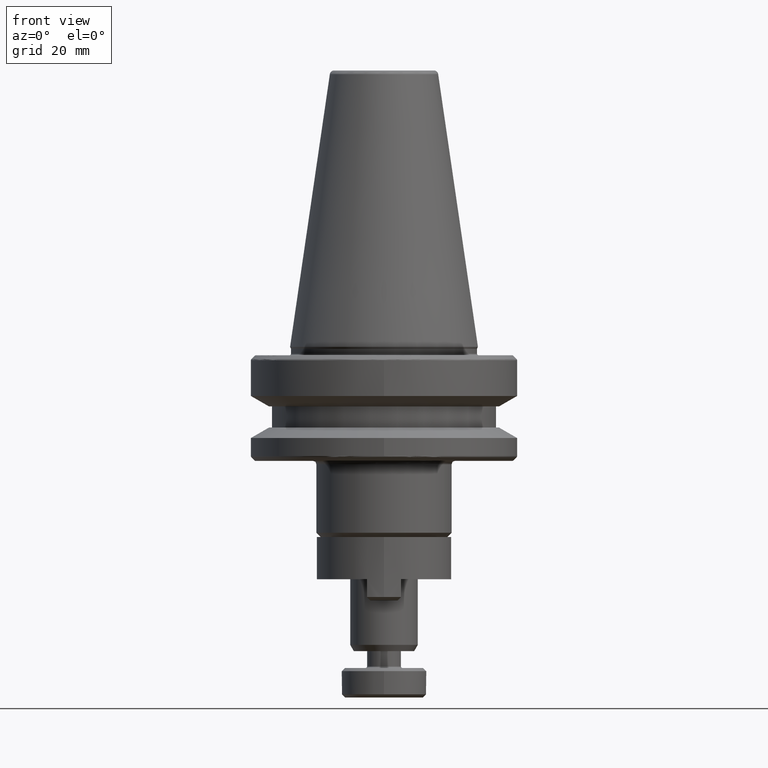
[diagram: clean part render]
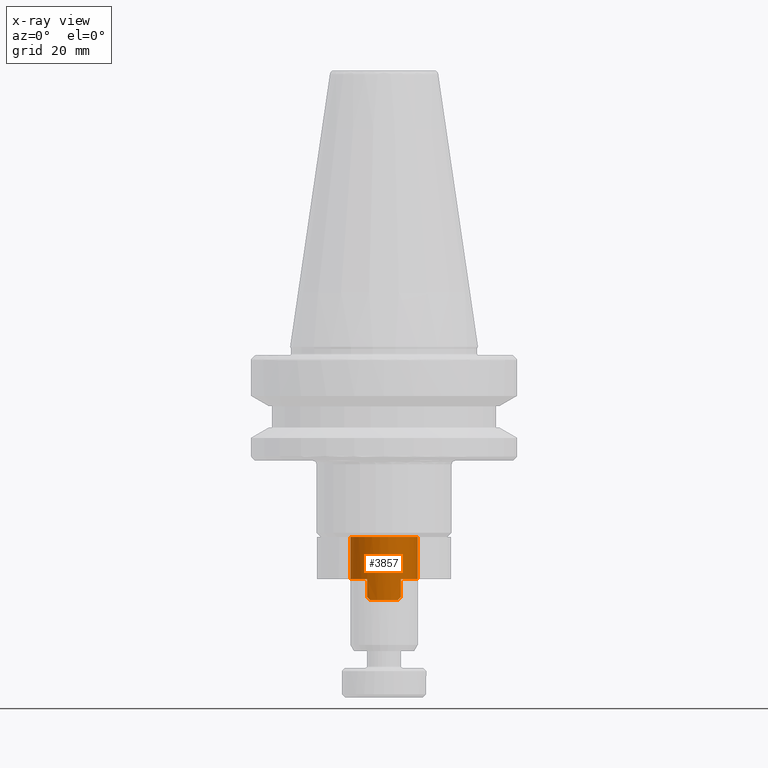
[diagram: x-ray — body ghosted, one internal face saturated and labeled with its STEP entity id]
A machine part, front view, then the same camera in x-ray: the body is ghosted and one INTERNAL B-rep face — a face not visible from any outside direction — is saturated and labeled: STEP entity #3857.
In plain terms, the highlighted cylindrical surface (edge-blend (fillet) strip) has radius 8 mm, axis along (0, -0, 1).
Its self-contained STEP definition (entity closure, byte-faithful):
#83 = AXIS2_PLACEMENT_3D ( 'NONE', #1804, #3956, #2111 ) ;
#129 = ORIENTED_EDGE ( 'NONE', *, *, #3432, .T. ) ;
#143 = VERTEX_POINT ( 'NONE', #2243 ) ;
#266 = VERTEX_POINT ( 'NONE', #3619 ) ;
#283 = CARTESIAN_POINT ( 'NONE',  ( 3.474076243319925300, -7.212504432767183900, -59.72592375668008200 ) ) ;
#290 = EDGE_CURVE ( 'NONE', #3644, #1627, #1548, .T. ) ;
#373 = EDGE_CURVE ( 'NONE', #3720, #2132, #3700, .T. ) ;
#456 = EDGE_CURVE ( 'NONE', #2132, #2025, #3599, .T. ) ;
#474 = CARTESIAN_POINT ( 'NONE',  ( -3.474076243037660800, -7.212504432890371600, -59.72592375696233100 ) ) ;
#523 = LINE ( 'NONE', #2659, #2869 ) ;
#565 = CARTESIAN_POINT ( 'NONE',  ( 0.0000000000000000000, 0.0000000000000000000, -55.00000000500000400 ) ) ;
#645 = EDGE_LOOP ( 'NONE', ( #1873, #2914, #1826, #3969, #843, #1738, #2781, #129, #1766, #2354 ) ) ;
#680 = CARTESIAN_POINT ( 'NONE',  ( -3.999999999630017300, -6.928203230702727000, -55.00000000250000200 ) ) ;
#789 = CARTESIAN_POINT ( 'NONE',  ( -3.741022292333865600, -7.077724079473783000, -59.45897770766613600 ) ) ;
#826 = DIRECTION ( 'NONE',  ( 0.0000000000000000000, 0.0000000000000000000, 1.000000000000000000 ) ) ;
#843 = ORIENTED_EDGE ( 'NONE', *, *, #1686, .T. ) ;
#876 = DIRECTION ( 'NONE',  ( 1.000000000000000000, 0.0000000000000000000, 0.0000000000000000000 ) ) ;
#898 = FACE_OUTER_BOUND ( 'NONE', #645, .T. ) ;
#906 = CARTESIAN_POINT ( 'NONE',  ( 4.000000000058927100, -6.928203230241490700, -59.19999999994107800 ) ) ;
#1007 = DIRECTION ( 'NONE',  ( -0.0000000000000000000, 0.0000000000000000000, -1.000000000000000000 ) ) ;
#1041 = DIRECTION ( 'NONE',  ( -0.0000000000000000000, -0.0000000000000000000, -1.000000000000000000 ) ) ;
#1047 = VECTOR ( 'NONE', #3616, 1000.000000000000000 ) ;
#1131 = VECTOR ( 'NONE', #1041, 1000.000000000000000 ) ;
#1250 = EDGE_CURVE ( 'NONE', #2025, #1627, #3162, .T. ) ;
#1315 =( BOUNDED_CURVE ( )  B_SPLINE_CURVE ( 3, ( #2625, #474, #789, #2937 ),
 .UNSPECIFIED., .F., .T. ) 
 B_SPLINE_CURVE_WITH_KNOTS ( ( 4, 4 ),
 ( 5.123905826452177500, 5.235987755876183600 ),
 .UNSPECIFIED. ) 
 CURVE ( )  GEOMETRIC_REPRESENTATION_ITEM ( )  RATIONAL_B_SPLINE_CURVE ( ( 1.000000000000000000, 0.9989534107100307400, 0.9989534107100307400, 1.000000000000000000 ) ) 
 REPRESENTATION_ITEM ( '' )  );
#1325 = VERTEX_POINT ( 'NONE', #3255 ) ;
#1380 = EDGE_CURVE ( 'NONE', #143, #3720, #523, .T. ) ;
#1548 = LINE ( 'NONE', #3086, #3896 ) ;
#1627 = VERTEX_POINT ( 'NONE', #2728 ) ;
#1686 = EDGE_CURVE ( 'NONE', #3644, #266, #2921, .T. ) ;
#1738 = ORIENTED_EDGE ( 'NONE', *, *, #3092, .T. ) ;
#1766 = ORIENTED_EDGE ( 'NONE', *, *, #2539, .T. ) ;
#1770 = EDGE_CURVE ( 'NONE', #1325, #2689, #2620, .T. ) ;
#1804 = CARTESIAN_POINT ( 'NONE',  ( 0.0000000000000000000, 0.0000000000000000000, -45.00000000000000000 ) ) ;
#1826 = ORIENTED_EDGE ( 'NONE', *, *, #1250, .T. ) ;
#1830 = DIRECTION ( 'NONE',  ( -0.0000000000000000000, 0.0000000000000000000, -1.000000000000000000 ) ) ;
#1840 = DIRECTION ( 'NONE',  ( 0.0000000000000000000, -0.0000000000000000000, 1.000000000000000000 ) ) ;
#1859 = AXIS2_PLACEMENT_3D ( 'NONE', #2846, #1007, #3158 ) ;
#1873 = ORIENTED_EDGE ( 'NONE', *, *, #373, .T. ) ;
#2025 = VERTEX_POINT ( 'NONE', #2840 ) ;
#2080 = CARTESIAN_POINT ( 'NONE',  ( -8.000000000000000000, 9.797174393178825700E-016, -60.00000000000000000 ) ) ;
#2111 = DIRECTION ( 'NONE',  ( 1.000000000000000000, 0.0000000000000000000, 0.0000000000000000000 ) ) ;
#2132 = VERTEX_POINT ( 'NONE', #2875 ) ;
#2150 = CARTESIAN_POINT ( 'NONE',  ( 0.0000000000000000000, 0.0000000000000000000, -60.00000000000000000 ) ) ;
#2243 = CARTESIAN_POINT ( 'NONE',  ( -3.999999999260036400, -6.928203230702729700, -59.20000000073996900 ) ) ;
#2354 = ORIENTED_EDGE ( 'NONE', *, *, #1380, .T. ) ;
#2417 = CARTESIAN_POINT ( 'NONE',  ( 8.000000000000000000, 0.0000000000000000000, -55.00000000500000400 ) ) ;
#2429 = CYLINDRICAL_SURFACE ( 'NONE', #2876, 8.000000000000000000 ) ;
#2471 = CIRCLE ( 'NONE', #2624, 8.000000000000000000 ) ;
#2539 = EDGE_CURVE ( 'NONE', #2551, #143, #1315, .T. ) ;
#2551 = VERTEX_POINT ( 'NONE', #3548 ) ;
#2620 =( BOUNDED_CURVE ( )  B_SPLINE_CURVE ( 3, ( #3037, #283, #2740, #906 ),
 .UNSPECIFIED., .F., .T. ) 
 B_SPLINE_CURVE_WITH_KNOTS ( ( 4, 4 ),
 ( 5.123905826452177500, 5.235987755991493100 ),
 .UNSPECIFIED. ) 
 CURVE ( )  GEOMETRIC_REPRESENTATION_ITEM ( )  RATIONAL_B_SPLINE_CURVE ( ( 1.000000000000000000, 0.9989534107078778000, 0.9989534107078778000, 1.000000000000000000 ) ) 
 REPRESENTATION_ITEM ( '' )  );
#2624 = AXIS2_PLACEMENT_3D ( 'NONE', #3677, #1830, #3985 ) ;
#2625 = CARTESIAN_POINT ( 'NONE',  ( -3.200000000000000200, -7.332121111929344800, -60.00000000000000000 ) ) ;
#2659 = CARTESIAN_POINT ( 'NONE',  ( -3.999999998520072700, -6.928203231129945300, -52.50000000000000000 ) ) ;
#2689 = VERTEX_POINT ( 'NONE', #2998 ) ;
#2713 = DIRECTION ( 'NONE',  ( -0.0000000000000000000, 0.0000000000000000000, -1.000000000000000000 ) ) ;
#2728 = CARTESIAN_POINT ( 'NONE',  ( 8.000000000000000000, 0.0000000000000000000, -45.00000000000000000 ) ) ;
#2740 = CARTESIAN_POINT ( 'NONE',  ( 3.741022292883280400, -7.077724079196397800, -59.45897770711671600 ) ) ;
#2781 = ORIENTED_EDGE ( 'NONE', *, *, #1770, .F. ) ;
#2840 = CARTESIAN_POINT ( 'NONE',  ( -8.000000000000000000, 9.797174393178825700E-016, -45.00000000000000000 ) ) ;
#2846 = CARTESIAN_POINT ( 'NONE',  ( 0.0000000000000000000, 0.0000000000000000000, -55.00000000500000400 ) ) ;
#2869 = VECTOR ( 'NONE', #826, 1000.000000000000000 ) ;
#2875 = CARTESIAN_POINT ( 'NONE',  ( -8.000000000000000000, 9.797174393178825700E-016, -55.00000000500000400 ) ) ;
#2876 = AXIS2_PLACEMENT_3D ( 'NONE', #2150, #1840, #3475 ) ;
#2914 = ORIENTED_EDGE ( 'NONE', *, *, #456, .T. ) ;
#2921 = CIRCLE ( 'NONE', #3323, 8.000000000000000000 ) ;
#2937 = CARTESIAN_POINT ( 'NONE',  ( -3.999999999260036400, -6.928203230702729700, -59.20000000073996900 ) ) ;
#2998 = CARTESIAN_POINT ( 'NONE',  ( 4.000000000058927100, -6.928203230241490700, -59.19999999994107800 ) ) ;
#3037 = CARTESIAN_POINT ( 'NONE',  ( 3.200000000000000200, -7.332121111929344800, -60.00000000000000000 ) ) ;
#3086 = CARTESIAN_POINT ( 'NONE',  ( 8.000000000000000000, 0.0000000000000000000, -60.00000000000000000 ) ) ;
#3092 = EDGE_CURVE ( 'NONE', #266, #2689, #3464, .T. ) ;
#3097 = DIRECTION ( 'NONE',  ( 0.0000000000000000000, -0.0000000000000000000, 1.000000000000000000 ) ) ;
#3158 = DIRECTION ( 'NONE',  ( 1.000000000000000000, 1.776356839400250500E-015, 0.0000000000000000000 ) ) ;
#3162 = CIRCLE ( 'NONE', #83, 8.000000000000000000 ) ;
#3255 = CARTESIAN_POINT ( 'NONE',  ( 3.200000000000000200, -7.332121111929344800, -60.00000000000000000 ) ) ;
#3323 = AXIS2_PLACEMENT_3D ( 'NONE', #565, #2713, #876 ) ;
#3432 = EDGE_CURVE ( 'NONE', #1325, #2551, #2471, .T. ) ;
#3464 = LINE ( 'NONE', #3492, #1131 ) ;
#3475 = DIRECTION ( 'NONE',  ( 1.000000000000000000, 0.0000000000000000000, 0.0000000000000000000 ) ) ;
#3492 = CARTESIAN_POINT ( 'NONE',  ( 4.000000000117853300, -6.928203230207467200, -52.50000000000000000 ) ) ;
#3548 = CARTESIAN_POINT ( 'NONE',  ( -3.200000000000000200, -7.332121111929344800, -60.00000000000000000 ) ) ;
#3599 = LINE ( 'NONE', #2080, #1047 ) ;
#3616 = DIRECTION ( 'NONE',  ( 0.0000000000000000000, -0.0000000000000000000, 1.000000000000000000 ) ) ;
#3619 = CARTESIAN_POINT ( 'NONE',  ( 4.000000000029462700, -6.928203230241488000, -55.00000000250000200 ) ) ;
#3644 = VERTEX_POINT ( 'NONE', #2417 ) ;
#3677 = CARTESIAN_POINT ( 'NONE',  ( 0.0000000000000000000, 0.0000000000000000000, -60.00000000000000000 ) ) ;
#3700 = CIRCLE ( 'NONE', #1859, 8.000000000000000000 ) ;
#3720 = VERTEX_POINT ( 'NONE', #680 ) ;
#3857 = ADVANCED_FACE ( 'NONE', ( #898 ), #2429, .F. ) ;
#3896 = VECTOR ( 'NONE', #3097, 1000.000000000000000 ) ;
#3956 = DIRECTION ( 'NONE',  ( 0.0000000000000000000, -0.0000000000000000000, 1.000000000000000000 ) ) ;
#3969 = ORIENTED_EDGE ( 'NONE', *, *, #290, .F. ) ;
#3985 = DIRECTION ( 'NONE',  ( 1.000000000000000000, 0.0000000000000000000, 0.0000000000000000000 ) ) ;